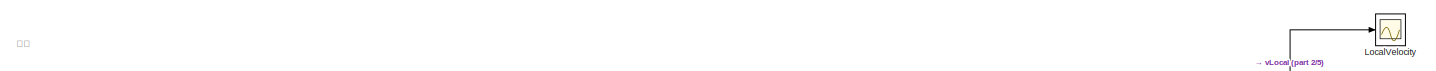
[diagram: root canvas - part 1/5, top right region]
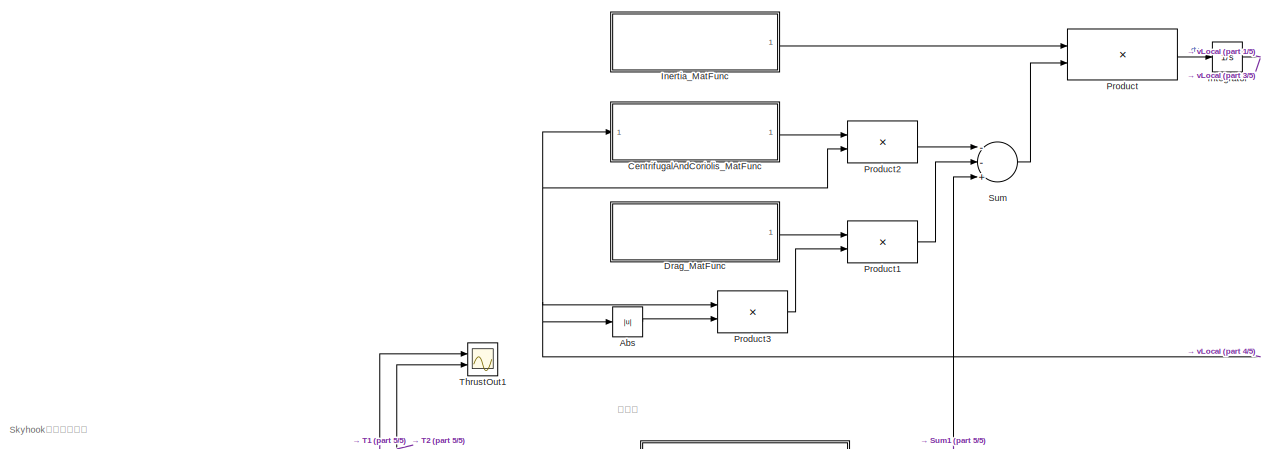
[diagram: root canvas - part 2/5, top center region]
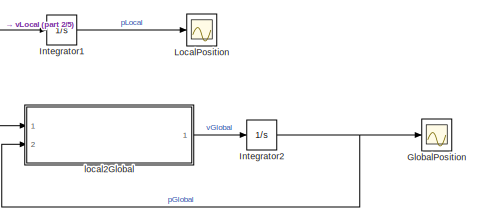
[diagram: root canvas - part 3/5, top right region]
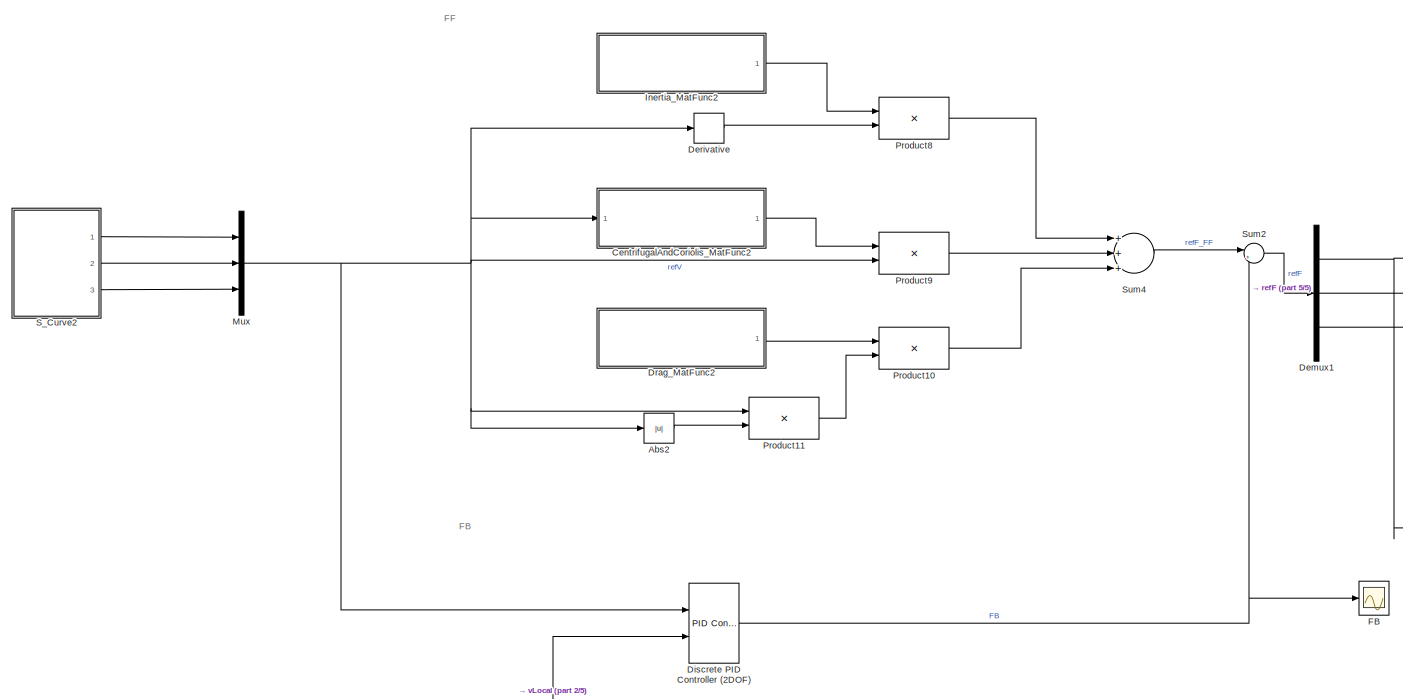
[diagram: root canvas - part 4/5, middle left region]
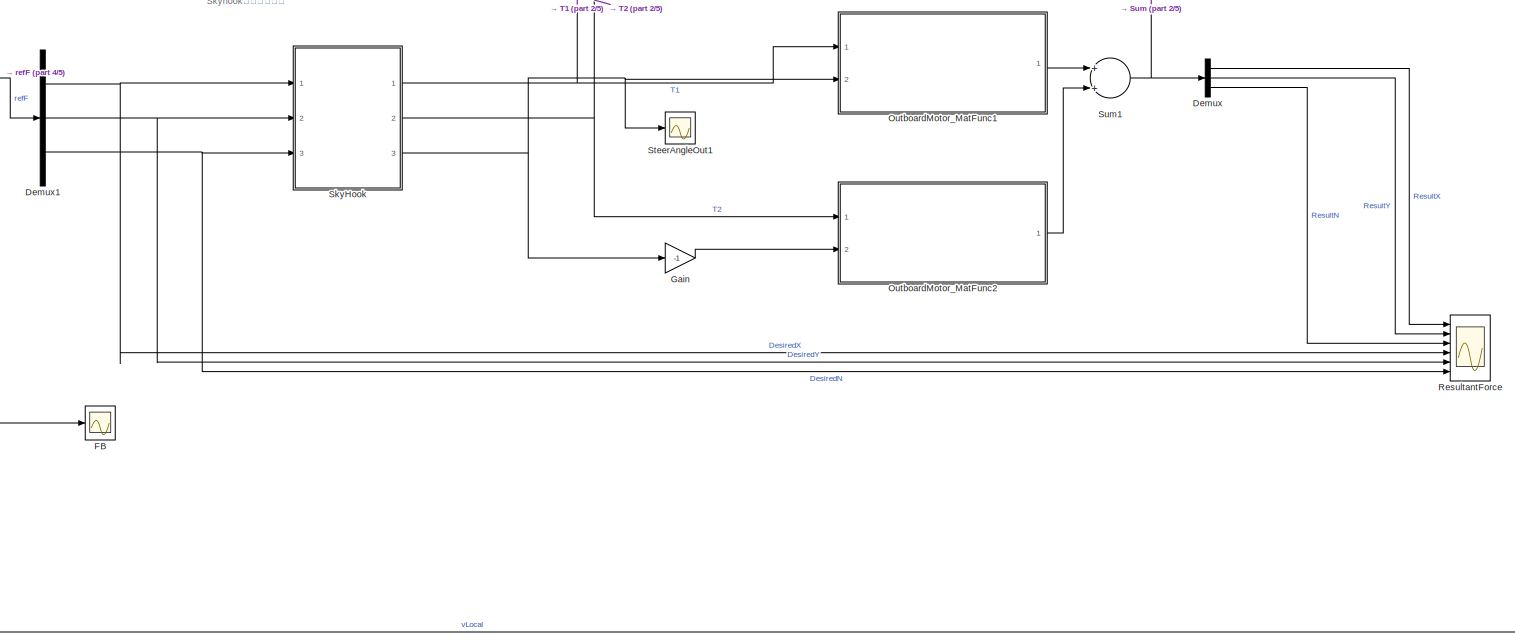
[diagram: root canvas - part 5/5, bottom center region]
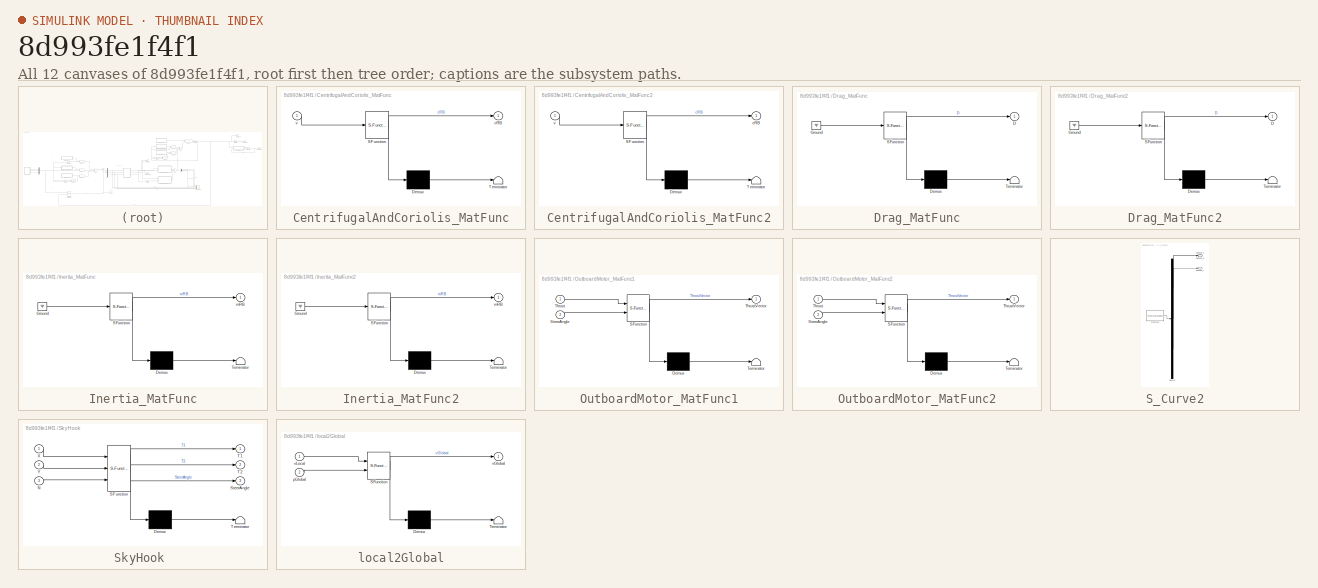
[diagram: thumbnail index - all 12 canvases of the model, root first then tree order]
MODEL slx_8d993fe1f4f1
KIND model
CONFIG AbsTol = auto
CONFIG EnableMultiTasking = on
CONFIG FixedStep = auto
CONFIG MaxStep = auto
CONFIG MinStep = auto
CONFIG RelTol = 1e-3
CONFIG SampleTimeConstraint = Unconstrained
CONFIG Solver = ode45
CONFIG SolverName = ode45
CONFIG StartTime = 0.0
CONFIG StopTime = 50
BLOCK [Abs] Abs
  SaturateOnIntegerOverflow = off
BLOCK [Abs] Abs2
  SaturateOnIntegerOverflow = off
BLOCK [SubSystem] CentrifugalAndCoriolis_MatFunc
  ErrorFcn = Stateflow.Translate.translate
  PermitHierarchicalResolution = ExplicitOnly
  Ports = [1, 1]
  RequestExecContextInheritance = off
  SFBlockType = MATLAB Function
  TreatAsAtomicUnit = on
BLOCK [Demux] CentrifugalAndCoriolis_MatFunc/ Demux 
  Outputs = 1
  Ports = [1, 1]
BLOCK [S-Function] CentrifugalAndCoriolis_MatFunc/ SFunction 
  EnableBusSupport = on
  FunctionName = sf_sfun
  Parameters = Mass,rg
  PortCounts = [1 2]
  Ports = [1, 2]
  SFcnIsStateOwnerBlock = off
  SFunctionDeploymentMode = off
  Tag = Stateflow S-Function BoatSim 1
BLOCK [Terminator] CentrifugalAndCoriolis_MatFunc/ Terminator 
BLOCK [Outport] CentrifugalAndCoriolis_MatFunc/cRB
  IconDisplay = Port number
BLOCK [Inport] CentrifugalAndCoriolis_MatFunc/v
  IconDisplay = Port number
BLOCK [SubSystem] CentrifugalAndCoriolis_MatFunc2
  ErrorFcn = Stateflow.Translate.translate
  PermitHierarchicalResolution = ExplicitOnly
  Ports = [1, 1]
  RequestExecContextInheritance = off
  SFBlockType = MATLAB Function
  TreatAsAtomicUnit = on
BLOCK [Demux] CentrifugalAndCoriolis_MatFunc2/ Demux 
  Outputs = 1
  Ports = [1, 1]
BLOCK [S-Function] CentrifugalAndCoriolis_MatFunc2/ SFunction 
  EnableBusSupport = on
  FunctionName = sf_sfun
  Parameters = Mass,rg
  PortCounts = [1 2]
  Ports = [1, 2]
  SFcnIsStateOwnerBlock = off
  SFunctionDeploymentMode = off
  Tag = Stateflow S-Function BoatSim 15
BLOCK [Terminator] CentrifugalAndCoriolis_MatFunc2/ Terminator 
BLOCK [Outport] CentrifugalAndCoriolis_MatFunc2/cRB
  IconDisplay = Port number
BLOCK [Inport] CentrifugalAndCoriolis_MatFunc2/v
  IconDisplay = Port number
BLOCK [Demux] Demux
  DisplayOption = bar
  Outputs = 3
  Ports = [1, 3]
BLOCK [Demux] Demux1
  DisplayOption = bar
  Outputs = 3
  Ports = [1, 3]
BLOCK [Derivative] Derivative
BLOCK [Reference] Discrete PID Controller (2DOF)  REF=simulink/Continuous/PID Controller (2DOF)
  Ports = [2, 1]
  SourceBlock = simulink/Continuous/PID Controller (2DOF)
  SourceProductBaseCode = SL
  SourceProductName = Simulink
  SourceType = PID 2dof
BLOCK [SubSystem] Drag_MatFunc
  ErrorFcn = Stateflow.Translate.translate
  MinAlgLoopOccurrences = on
  PermitHierarchicalResolution = ExplicitOnly
  Ports = [0, 1]
  RequestExecContextInheritance = off
  SFBlockType = MATLAB Function
  SystemSampleTime = 0
  TreatAsAtomicUnit = on
BLOCK [Demux] Drag_MatFunc/ Demux 
  Outputs = 1
  Ports = [1, 1]
BLOCK [Ground] Drag_MatFunc/ Ground 
BLOCK [S-Function] Drag_MatFunc/ SFunction 
  EnableBusSupport = on
  FunctionName = sf_sfun
  Parameters = Dr,Du,Dv
  PortCounts = [1 2]
  Ports = [1, 2]
  SFcnIsStateOwnerBlock = off
  SFunctionDeploymentMode = off
  Tag = Stateflow S-Function BoatSim 3
BLOCK [Terminator] Drag_MatFunc/ Terminator 
BLOCK [Outport] Drag_MatFunc/D
  IconDisplay = Port number
BLOCK [SubSystem] Drag_MatFunc2
  ErrorFcn = Stateflow.Translate.translate
  PermitHierarchicalResolution = ExplicitOnly
  Ports = [0, 1]
  RequestExecContextInheritance = off
  SFBlockType = MATLAB Function
  TreatAsAtomicUnit = on
BLOCK [Demux] Drag_MatFunc2/ Demux 
  Outputs = 1
  Ports = [1, 1]
BLOCK [Ground] Drag_MatFunc2/ Ground 
BLOCK [S-Function] Drag_MatFunc2/ SFunction 
  EnableBusSupport = on
  FunctionName = sf_sfun
  Parameters = Dr,Du,Dv
  PortCounts = [1 2]
  Ports = [1, 2]
  SFcnIsStateOwnerBlock = off
  SFunctionDeploymentMode = off
  Tag = Stateflow S-Function BoatSim 16
BLOCK [Terminator] Drag_MatFunc2/ Terminator 
BLOCK [Outport] Drag_MatFunc2/D
  IconDisplay = Port number
BLOCK [Scope] FB
  Floating = off
  NumInputPorts = 1
  Ports = [1]
  ScopeSpecificationString = Simulink.scopes.TimeScopeBlockCfg('CurrentConfiguration', extmgr.ConfigurationSet(extmgr.Configuration('Core','General UI',true),extmgr.Configuration('Core','Source UI',true),extmgr.Configuration('Sources','WiredSimulink',true,'DataLoggingVariableName','ScopeData1','SampleTime','dScpopeSamplingPeriod','DataLoggingSaveFormat','StructureWithTime','DataLoggingDecimation','1','DataLoggingDecimateData'...<+1810ch>
BLOCK [Gain] Gain
  Gain = -1
  OutDataTypeStr = Inherit: Inherit via internal rule
  ParamDataTypeStr = Inherit: Inherit via internal rule
  SaturateOnIntegerOverflow = off
BLOCK [Scope] GlobalPosition
  Floating = off
  NumInputPorts = 1
  Ports = [1]
  ScopeSpecificationString = Simulink.scopes.TimeScopeBlockCfg('CurrentConfiguration', extmgr.ConfigurationSet(extmgr.Configuration('Core','General UI',true),extmgr.Configuration('Core','Source UI',true),extmgr.Configuration('Sources','WiredSimulink',true,'DataLogging',true,'DataLoggingVariableName','GlobalPosition','SampleTime','dScpopeSamplingPeriod','DataLoggingSaveFormat','Array','DataLoggingDecimation','1','DataLoggingDe...<+1741ch>
BLOCK [SubSystem] Inertia_MatFunc
  ErrorFcn = Stateflow.Translate.translate
  PermitHierarchicalResolution = ExplicitOnly
  Ports = [0, 1]
  RequestExecContextInheritance = off
  SFBlockType = MATLAB Function
  SystemSampleTime = 0
  TreatAsAtomicUnit = on
BLOCK [Demux] Inertia_MatFunc/ Demux 
  Outputs = 1
  Ports = [1, 1]
BLOCK [Ground] Inertia_MatFunc/ Ground 
BLOCK [S-Function] Inertia_MatFunc/ SFunction 
  EnableBusSupport = on
  FunctionName = sf_sfun
  Parameters = IoM,Mass,rg
  PortCounts = [1 2]
  Ports = [1, 2]
  SFcnIsStateOwnerBlock = off
  SFunctionDeploymentMode = off
  Tag = Stateflow S-Function BoatSim 2
BLOCK [Terminator] Inertia_MatFunc/ Terminator 
BLOCK [Outport] Inertia_MatFunc/mRB
  IconDisplay = Port number
BLOCK [SubSystem] Inertia_MatFunc2
  ErrorFcn = Stateflow.Translate.translate
  PermitHierarchicalResolution = ExplicitOnly
  Ports = [0, 1]
  RequestExecContextInheritance = off
  SFBlockType = MATLAB Function
  TreatAsAtomicUnit = on
BLOCK [Demux] Inertia_MatFunc2/ Demux 
  Outputs = 1
  Ports = [1, 1]
BLOCK [Ground] Inertia_MatFunc2/ Ground 
BLOCK [S-Function] Inertia_MatFunc2/ SFunction 
  EnableBusSupport = on
  FunctionName = sf_sfun
  Parameters = IoM,Mass,rg
  PortCounts = [1 2]
  Ports = [1, 2]
  SFcnIsStateOwnerBlock = off
  SFunctionDeploymentMode = off
  Tag = Stateflow S-Function BoatSim 13
BLOCK [Terminator] Inertia_MatFunc2/ Terminator 
BLOCK [Outport] Inertia_MatFunc2/mRB
  IconDisplay = Port number
BLOCK [Integrator] Integrator
  Ports = [1, 1]
BLOCK [Integrator] Integrator1
  Ports = [1, 1]
BLOCK [Integrator] Integrator2
  Ports = [1, 1]
BLOCK [Scope] LocalPosition
  Floating = off
  NumInputPorts = 1
  Ports = [1]
  ScopeSpecificationString = Simulink.scopes.TimeScopeBlockCfg('CurrentConfiguration', extmgr.ConfigurationSet(extmgr.Configuration('Core','General UI',true),extmgr.Configuration('Core','Source UI',true),extmgr.Configuration('Sources','WiredSimulink',true,'DataLoggingSaveFormat','Array','DataLoggingDecimation','1','DataLoggingDecimateData',true),extmgr.Configuration('Visuals','Time Domain',true,'SerializedDisplays',{struct('M...<+1639ch>
BLOCK [Scope] LocalVelocity 
  Floating = off
  NumInputPorts = 1
  Ports = [1]
  ScopeSpecificationString = Simulink.scopes.TimeScopeBlockCfg('CurrentConfiguration', extmgr.ConfigurationSet(extmgr.Configuration('Core','General UI',true),extmgr.Configuration('Core','Source UI',true),extmgr.Configuration('Sources','WiredSimulink',true,'DataLoggingSaveFormat','Array','DataLoggingDecimation','1','DataLoggingDecimateData',true,'DataLoggingVariableName','ScopeData1'),extmgr.Configuration('Visuals','Time Domai...<+1791ch>
BLOCK [Mux] Mux
  DisplayOption = bar
  Inputs = 3
  Ports = [3, 1]
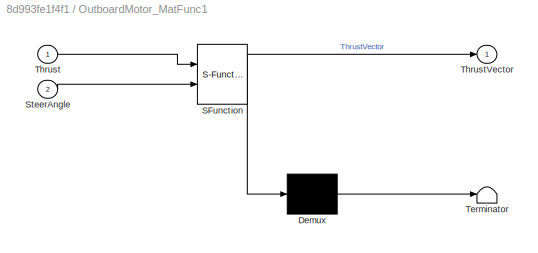
BLOCK [SubSystem] OutboardMotor_MatFunc1
  ErrorFcn = Stateflow.Translate.translate
  PermitHierarchicalResolution = ExplicitOnly
  Ports = [2, 1]
  RequestExecContextInheritance = off
  SFBlockType = MATLAB Function
  TreatAsAtomicUnit = on
BLOCK [Demux] OutboardMotor_MatFunc1/ Demux 
  Outputs = 1
  Ports = [1, 1]
BLOCK [S-Function] OutboardMotor_MatFunc1/ SFunction 
  EnableBusSupport = on
  FunctionName = sf_sfun
  Parameters = OM,rg
  PortCounts = [2 2]
  Ports = [2, 2]
  SFcnIsStateOwnerBlock = off
  SFunctionDeploymentMode = off
  Tag = Stateflow S-Function BoatSim 5
BLOCK [Terminator] OutboardMotor_MatFunc1/ Terminator 
BLOCK [Inport] OutboardMotor_MatFunc1/SteerAngle
  IconDisplay = Port number
  Port = 2
BLOCK [Inport] OutboardMotor_MatFunc1/Thrust
  IconDisplay = Port number
BLOCK [Outport] OutboardMotor_MatFunc1/ThrustVector
  IconDisplay = Port number
BLOCK [SubSystem] OutboardMotor_MatFunc2
  ErrorFcn = Stateflow.Translate.translate
  PermitHierarchicalResolution = ExplicitOnly
  Ports = [2, 1]
  RequestExecContextInheritance = off
  SFBlockType = MATLAB Function
  TreatAsAtomicUnit = on
BLOCK [Demux] OutboardMotor_MatFunc2/ Demux 
  Outputs = 1
  Ports = [1, 1]
BLOCK [S-Function] OutboardMotor_MatFunc2/ SFunction 
  EnableBusSupport = on
  FunctionName = sf_sfun
  Parameters = OM,rg
  PortCounts = [2 2]
  Ports = [2, 2]
  SFcnIsStateOwnerBlock = off
  SFunctionDeploymentMode = off
  Tag = Stateflow S-Function BoatSim 6
BLOCK [Terminator] OutboardMotor_MatFunc2/ Terminator 
BLOCK [Inport] OutboardMotor_MatFunc2/SteerAngle
  IconDisplay = Port number
  Port = 2
BLOCK [Inport] OutboardMotor_MatFunc2/Thrust
  IconDisplay = Port number
BLOCK [Outport] OutboardMotor_MatFunc2/ThrustVector
  IconDisplay = Port number
BLOCK [Product] Product
  InputSameDT = off
  Inputs = /*
  Multiplication = Matrix(*)
  OutDataTypeStr = Inherit: Inherit via internal rule
  Ports = [2, 1]
  RndMeth = Floor
  SaturateOnIntegerOverflow = off
BLOCK [Product] Product1
  InputSameDT = off
  Multiplication = Matrix(*)
  OutDataTypeStr = Inherit: Inherit via internal rule
  Ports = [2, 1]
  RndMeth = Floor
  SaturateOnIntegerOverflow = off
BLOCK [Product] Product10
  InputSameDT = off
  Multiplication = Matrix(*)
  OutDataTypeStr = Inherit: Inherit via internal rule
  Ports = [2, 1]
  RndMeth = Floor
  SaturateOnIntegerOverflow = off
BLOCK [Product] Product11
  InputSameDT = off
  OutDataTypeStr = Inherit: Inherit via internal rule
  Ports = [2, 1]
  RndMeth = Floor
  SaturateOnIntegerOverflow = off
BLOCK [Product] Product2
  InputSameDT = off
  Multiplication = Matrix(*)
  OutDataTypeStr = Inherit: Inherit via internal rule
  Ports = [2, 1]
  RndMeth = Floor
  SaturateOnIntegerOverflow = off
BLOCK [Product] Product3
  InputSameDT = off
  OutDataTypeStr = Inherit: Inherit via internal rule
  Ports = [2, 1]
  RndMeth = Floor
  SaturateOnIntegerOverflow = off
BLOCK [Product] Product8
  InputSameDT = off
  Multiplication = Matrix(*)
  OutDataTypeStr = Inherit: Inherit via internal rule
  Ports = [2, 1]
  RndMeth = Floor
  SaturateOnIntegerOverflow = off
BLOCK [Product] Product9
  InputSameDT = off
  Multiplication = Matrix(*)
  OutDataTypeStr = Inherit: Inherit via internal rule
  Ports = [2, 1]
  RndMeth = Floor
  SaturateOnIntegerOverflow = off
BLOCK [Scope] ResultantForce
  Floating = off
  NumInputPorts = 6
  Ports = [6]
  ScopeSpecificationString = Simulink.scopes.TimeScopeBlockCfg('CurrentConfiguration', extmgr.ConfigurationSet(extmgr.Configuration('Core','General UI',true),extmgr.Configuration('Core','Source UI',true),extmgr.Configuration('Sources','WiredSimulink',true,'DataLoggingVariableName','ScopeData2','SampleTime','dScpopeSamplingPeriod','DataLoggingSaveFormat','Array','DataLoggingDecimation','1','DataLoggingDecimateData',true),extmg...<+5241ch>
BLOCK [SubSystem] S_Curve2
  ClipboardFcn = sigbuilder_block('clipboard');
  CloseFcn = sigbuilder_block('close');
  ContinueFcn = sigbuilder_block('continue');
  CopyFcn = sigbuilder_block('copy');
  DeleteFcn = sigbuilder_block('delete');
  LoadFcn = sigbuilder_block('load',[0 0 942 582 ]);
  MaskHideContents = on
  ModelCloseFcn = sigbuilder_block('modelClose');
  NameChangeFcn = sigbuilder_block('namechange');
  OpenFcn = sigbuilder_block('open',[674 298 550 400 ]);
  PauseFcn = sigbuilder_block('pause');
  Ports = [0, 3]
  PreSaveFcn = sigbuilder_block('preSave');
  RequestExecContextInheritance = off
  StartFcn = sigbuilder_block('start');
  StopFcn = sigbuilder_block('stop');
  Tag = STV Subsys
BLOCK [Demux] S_Curve2/Demux
  Outputs = 3
  Ports = [1, 3]
  Tag = STV Demux
BLOCK [Outport] S_Curve2/Desired_r
  IconDisplay = Port number
  Port = 3
  Tag = STV Outport
BLOCK [Outport] S_Curve2/Desired_u
  IconDisplay = Port number
  Tag = STV Outport
BLOCK [Outport] S_Curve2/Desired_v
  IconDisplay = Port number
  Port = 2
  Tag = STV Outport
BLOCK [FromWorkspace] S_Curve2/FromWs
  SampleTime = 0
  Tag = STV FromWs
  VariableName = tuvar
  ZeroCross = on
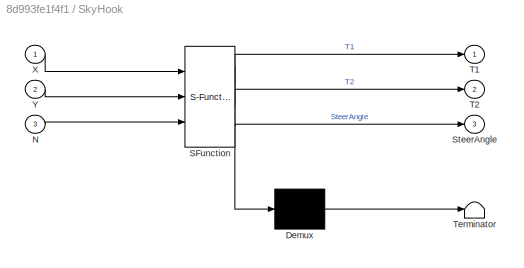
BLOCK [SubSystem] SkyHook 
  ErrorFcn = Stateflow.Translate.translate
  PermitHierarchicalResolution = ExplicitOnly
  Ports = [3, 3]
  RequestExecContextInheritance = off
  SFBlockType = MATLAB Function
  TreatAsAtomicUnit = on
BLOCK [Demux] SkyHook / Demux 
  Outputs = 1
  Ports = [1, 1]
BLOCK [S-Function] SkyHook / SFunction 
  EnableBusSupport = on
  FunctionName = sf_sfun
  PortCounts = [3 4]
  Ports = [3, 4]
  SFcnIsStateOwnerBlock = off
  SFunctionDeploymentMode = off
  Tag = Stateflow S-Function BoatSim 7
BLOCK [Terminator] SkyHook / Terminator 
BLOCK [Inport] SkyHook /N
  IconDisplay = Port number
  Port = 3
BLOCK [Outport] SkyHook /SteerAngle
  IconDisplay = Port number
  Port = 3
BLOCK [Outport] SkyHook /T1
  IconDisplay = Port number
BLOCK [Outport] SkyHook /T2
  IconDisplay = Port number
  Port = 2
BLOCK [Inport] SkyHook /X
  IconDisplay = Port number
BLOCK [Inport] SkyHook /Y
  IconDisplay = Port number
  Port = 2
BLOCK [Scope] SteerAngleOut1
  Floating = off
  NumInputPorts = 1
  Ports = [1]
  ScopeSpecificationString = Simulink.scopes.TimeScopeBlockCfg('CurrentConfiguration', extmgr.ConfigurationSet(extmgr.Configuration('Core','General UI',true),extmgr.Configuration('Core','Source UI',true),extmgr.Configuration('Sources','WiredSimulink',true,'DataLogging',true,'DataLoggingVariableName','SteerAngle1','SampleTime','dScpopeSamplingPeriod','DataLoggingSaveFormat','Array','DataLoggingDecimation','1','DataLoggingDecim...<+1791ch>
BLOCK [Sum] Sum
  InputSameDT = off
  Inputs = --+
  OutDataTypeStr = Inherit: Inherit via internal rule
  Ports = [3, 1]
  SaturateOnIntegerOverflow = off
BLOCK [Sum] Sum1
  InputSameDT = off
  OutDataTypeStr = Inherit: Inherit via internal rule
  Ports = [2, 1]
  SaturateOnIntegerOverflow = off
BLOCK [Sum] Sum2
  IconShape = round
  InputSameDT = off
  Inputs = |++
  OutDataTypeStr = Inherit: Inherit via internal rule
  Ports = [2, 1]
  SaturateOnIntegerOverflow = off
BLOCK [Sum] Sum4
  InputSameDT = off
  Inputs = +++
  OutDataTypeStr = Inherit: Inherit via internal rule
  Ports = [3, 1]
  SaturateOnIntegerOverflow = off
BLOCK [Scope] ThrustOut1
  Floating = off
  NumInputPorts = 2
  Ports = [2]
  ScopeSpecificationString = Simulink.scopes.TimeScopeBlockCfg('CurrentConfiguration', extmgr.ConfigurationSet(extmgr.Configuration('Core','General UI',true),extmgr.Configuration('Core','Source UI',true),extmgr.Configuration('Sources','WiredSimulink',true,'DataLoggingVariableName','Thrust1','SampleTime','dScpopeSamplingPeriod','DataLoggingSaveFormat','Array','DataLoggingDecimation','1','DataLoggingDecimateData',true),extmgr.C...<+1795ch>
BLOCK [SubSystem] local2Global
  ErrorFcn = Stateflow.Translate.translate
  PermitHierarchicalResolution = ExplicitOnly
  Ports = [2, 1]
  RequestExecContextInheritance = off
  SFBlockType = MATLAB Function
  TreatAsAtomicUnit = on
BLOCK [Demux] local2Global/ Demux 
  Outputs = 1
  Ports = [1, 1]
BLOCK [S-Function] local2Global/ SFunction 
  EnableBusSupport = on
  FunctionName = sf_sfun
  PortCounts = [2 2]
  Ports = [2, 2]
  SFcnIsStateOwnerBlock = off
  SFunctionDeploymentMode = off
  Tag = Stateflow S-Function BoatSim 4
BLOCK [Terminator] local2Global/ Terminator 
BLOCK [Inport] local2Global/pGlobal
  IconDisplay = Port number
  Port = 2
BLOCK [Outport] local2Global/vGlobal
  IconDisplay = Port number
BLOCK [Inport] local2Global/vLocal
  IconDisplay = Port number
ANNOTATION (root): FB
ANNOTATION (root): FF
ANNOTATION (root): Skyhookコントローラ
ANNOTATION (root): 船体
ANNOTATION (root): 船外機
LINE Abs2:1 -> Product11:2
LINE Abs:1 -> Product3:2
LINE CentrifugalAndCoriolis_MatFunc2:1 -> Product9:1
LINE CentrifugalAndCoriolis_MatFunc:1 -> Product2:1
NET Demux1:1 -> ResultantForce:4, SkyHook :1
NET Demux1:2 -> ResultantForce:5, SkyHook :2
NET Demux1:3 -> ResultantForce:6, SkyHook :3
LINE Demux:1 -> ResultantForce:1
LINE Demux:2 -> ResultantForce:2
LINE Demux:3 -> ResultantForce:3
LINE Derivative:1 -> Product8:2
NET Discrete PID Controller (2DOF):1 -> FB:1, Sum2:2
LINE Drag_MatFunc2:1 -> Product10:1
LINE Drag_MatFunc:1 -> Product1:1
LINE Gain:1 -> OutboardMotor_MatFunc2:2
LINE Inertia_MatFunc2:1 -> Product8:1
LINE Inertia_MatFunc:1 -> Product:1
LINE Integrator1:1 -> LocalPosition:1
NET Integrator2:1 -> GlobalPosition:1, local2Global:2
NET Integrator:1 -> Abs:1, CentrifugalAndCoriolis_MatFunc:1, Discrete PID Controller (2DOF):2, Integrator1:1, LocalVelocity :1, Product2:2, Product3:1, local2Global:1
NET Mux:1 -> Abs2:1, CentrifugalAndCoriolis_MatFunc2:1, Derivative:1, Discrete PID Controller (2DOF):1, Product11:1, Product9:2
LINE OutboardMotor_MatFunc1:1 -> Sum1:1
LINE OutboardMotor_MatFunc2:1 -> Sum1:2
LINE Product10:1 -> Sum4:3
LINE Product11:1 -> Product10:2
LINE Product1:1 -> Sum:2
LINE Product2:1 -> Sum:1
LINE Product3:1 -> Product1:2
LINE Product8:1 -> Sum4:1
LINE Product9:1 -> Sum4:2
LINE Product:1 -> Integrator:1
LINE S_Curve2:1 -> Mux:1
LINE S_Curve2:2 -> Mux:2
LINE S_Curve2:3 -> Mux:3
NET SkyHook :1 -> OutboardMotor_MatFunc1:1, ThrustOut1:1
NET SkyHook :2 -> OutboardMotor_MatFunc2:1, ThrustOut1:2
NET SkyHook :3 -> Gain:1, OutboardMotor_MatFunc1:2, SteerAngleOut1:1
NET Sum1:1 -> Demux:1, Sum:3
LINE Sum2:1 -> Demux1:1
LINE Sum4:1 -> Sum2:1
LINE Sum:1 -> Product:2
LINE local2Global:1 -> Integrator2:1
note: NET lines group one-source signal fan-out (src -> all destinations, sorted); 1:1 wires keep LINE
CHART CentrifugalAndCoriolis_MatFunc states=1 transitions=1
  STATE_LABEL 'eML_blk_kernel()'
  STATE_LABEL 'SCRIPT:\nfunction cRB = CentrifugalAndCoriolis_MatFunc( v, Mass, rg )\n    cRB = CentrifugalAndCoriolis( Mass, rg, v );\nend'
CHART Inertia_MatFunc states=1 transitions=1
  STATE_LABEL 'eML_blk_kernel()'
  STATE_LABEL 'SCRIPT:\nfunction mRB = Inertia_MatFunc( Mass, IoM, rg )\n    mRB = Inertia( Mass, IoM, rg );\nend'
CHART Drag_MatFunc states=1 transitions=1
  STATE_LABEL 'eML_blk_kernel()'
  STATE_LABEL 'SCRIPT:\nfunction D = Drag_MatFunc( Du, Dv, Dr )\n    D = Drag( Du, Dv, Dr );\nend'
CHART local2Global states=1 transitions=1
  STATE_LABEL 'eML_blk_kernel()'
  STATE_LABEL 'SCRIPT:\nfunction vGlobal = local2global_MatFunc( vLocal, pGlobal )\n    vGlobal = local2global( vLocal, pGlobal );\nend'
CHART OutboardMotor_MatFunc1 states=1 transitions=1
  STATE_LABEL 'eML_blk_kernel()'
  STATE_LABEL 'SCRIPT:\nfunction ThrustVector = OutboardMotor_MatFunc( Thrust, SteerAngle, rg, OM )\n    ThrustVector = OutboardMotor( Thrust, SteerAngle, rg, OM(1).rb2om );\nend'
CHART OutboardMotor_MatFunc2 states=1 transitions=1
  STATE_LABEL 'eML_blk_kernel()'
  STATE_LABEL 'SCRIPT:\nfunction ThrustVector = OutboardMotor_MatFunc( Thrust, SteerAngle, rg, OM )\n    ThrustVector = OutboardMotor( Thrust, SteerAngle, rg, OM(2).rb2om );\nend'
CHART SkyHook
 states=1 transitions=1
  STATE_LABEL 'eML_blk_kernel()'
  STATE_LABEL 'SCRIPT:\nfunction [ T1, T2, SteerAngle ]  = SkyHook_MatFunc(X, Y, N)\n    rx = 3;%OM(1).rb2om(1);\n    ry = 0.5;%OM(1).rb2om(2);\n    if Y == 0 % sin=0\n        SteerAngle = 0;\n        T1 = [(X + N/ry) / 2; 0;];\n        T2 = [(X - N/ry) / 2; 0;];\n    elseif Y*rx+N == 0 % cos=0\n        SteerAngle = 0; % pi/2;\n        T1 = [0;0;];\n        T2 = [0;0;];\n    else\n        SteerAngle = atan(ry*Y / (rx*Y+N)); ...<+202ch>'
CHART Inertia_MatFunc2 states=1 transitions=1
  STATE_LABEL 'eML_blk_kernel()'
  STATE_LABEL 'SCRIPT:\nfunction mRB = Inertia_MatFunc( Mass, IoM, rg )\n    mRB = Inertia( Mass, IoM, rg );\nend'
CHART CentrifugalAndCoriolis_MatFunc2 states=1 transitions=1
  STATE_LABEL 'eML_blk_kernel()'
  STATE_LABEL 'SCRIPT:\nfunction cRB = CentrifugalAndCoriolis_MatFunc( v, Mass, rg )\n    cRB = CentrifugalAndCoriolis( Mass, rg, v );\nend'
CHART Drag_MatFunc2 states=1 transitions=1
  STATE_LABEL 'eML_blk_kernel()'
  STATE_LABEL 'SCRIPT:\nfunction D = Drag_MatFunc( Du, Dv, Dr )\n    D = Drag( Du, Dv, Dr );\nend'
